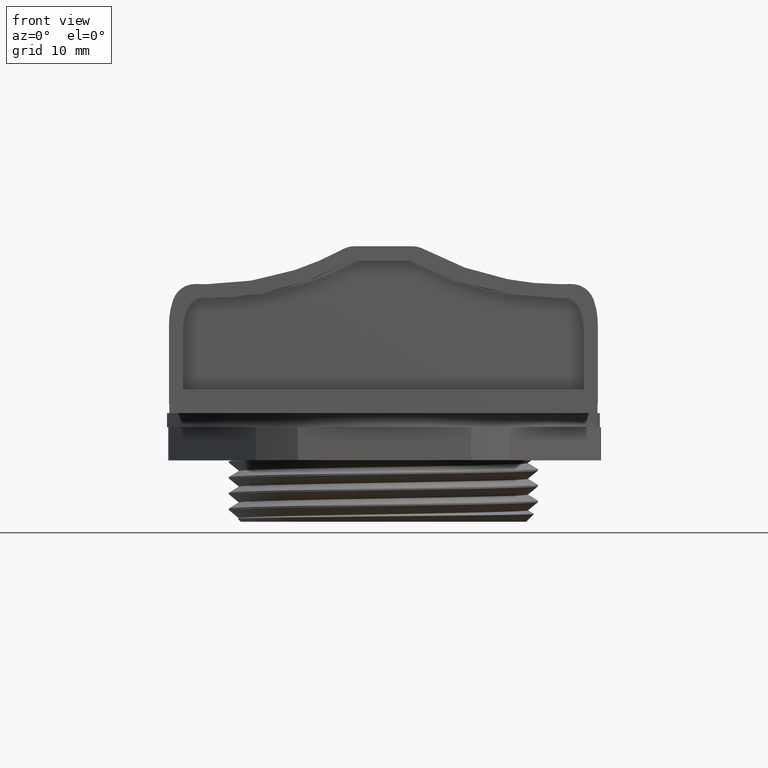
[diagram: clean part render]
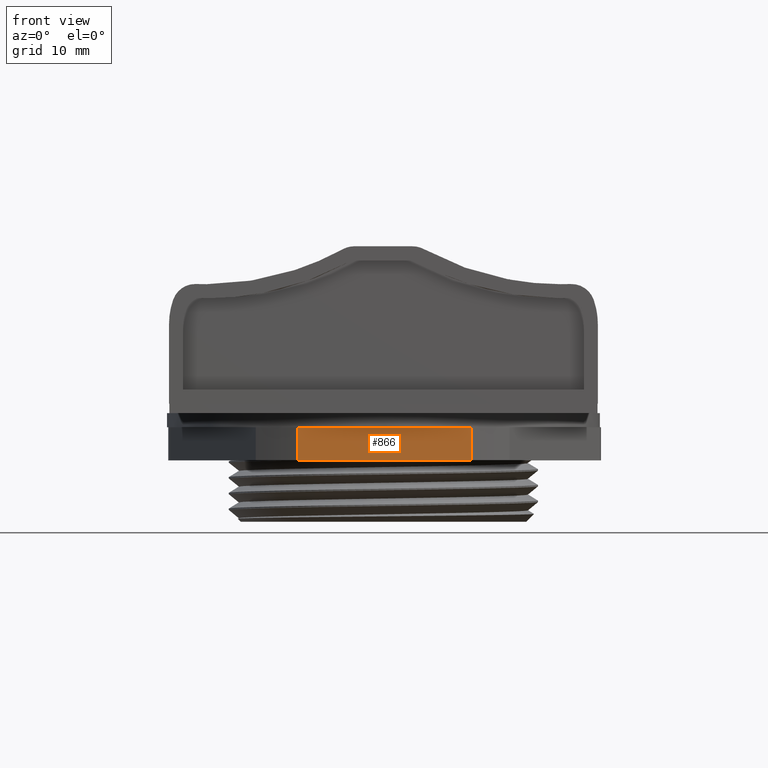
[diagram: same view with one face highlighted and labeled with its STEP entity id]
A machine part, front view. The second image highlights one B-rep face of the part: STEP entity #866.
In plain terms, the highlighted planar face has unit normal (-0, -1, 0).
Its self-contained STEP definition (entity closure, byte-faithful):
#611 = VERTEX_POINT ( 'NONE', #2903 ) ;
#618 = VERTEX_POINT ( 'NONE', #2890 ) ;
#658 = VERTEX_POINT ( 'NONE', #2970 ) ;
#661 = VERTEX_POINT ( 'NONE', #2931 ) ;
#866 = ADVANCED_FACE ( 'NONE', ( #3102 ), #3107, .T. ) ;
#1366 = EDGE_CURVE ( 'NONE', #658, #618, #7008, .T. ) ;
#1389 = EDGE_CURVE ( 'NONE', #661, #611, #7091, .T. ) ;
#1398 = EDGE_CURVE ( 'NONE', #611, #658, #7092, .T. ) ;
#1443 = EDGE_CURVE ( 'NONE', #618, #661, #7732, .T. ) ;
#2890 = CARTESIAN_POINT ( 'NONE',  ( -15.42616629562099800, -19.18970099667771500, 11.99999999999999800 ) ) ;
#2903 = CARTESIAN_POINT ( 'NONE',  ( 6.581818374526284800, -19.18970099667771500, 7.799999999999998000 ) ) ;
#2931 = CARTESIAN_POINT ( 'NONE',  ( 6.581818374526285700, -19.18970099667771500, 11.99999999999999800 ) ) ;
#2970 = CARTESIAN_POINT ( 'NONE',  ( -15.42616629562100700, -19.18970099667771500, 7.799999999999998000 ) ) ;
#3102 = FACE_OUTER_BOUND ( 'NONE', #13819, .T. ) ;
#3107 = PLANE ( 'NONE',  #5165 ) ;
#3108 = CARTESIAN_POINT ( 'NONE',  ( 10.15354489400268000, -19.18970099667771500, 89.90378681424928700 ) ) ;
#3109 = DIRECTION ( 'NONE',  ( -1.178285959793849500E-016, -1.000000000000000000, 0.0000000000000000000 ) ) ;
#3125 = DIRECTION ( 'NONE',  ( 1.000000000000000000, -1.178285959793849500E-016, 0.0000000000000000000 ) ) ;
#5165 = AXIS2_PLACEMENT_3D ( 'NONE', #3108, #3109, #3125 ) ;
#7008 = LINE ( 'NONE', #7014, #15991 ) ;
#7014 = CARTESIAN_POINT ( 'NONE',  ( -15.42616629562099800, -19.18970099667771500, -6.000000000000007100 ) ) ;
#7018 = DIRECTION ( 'NONE',  ( 0.0000000000000000000, 0.0000000000000000000, 1.000000000000000000 ) ) ;
#7083 = CARTESIAN_POINT ( 'NONE',  ( 6.581818374526284800, -19.18970099667771500, -6.000000000000007100 ) ) ;
#7091 = LINE ( 'NONE', #7083, #15983 ) ;
#7092 = LINE ( 'NONE', #7168, #16044 ) ;
#7101 = DIRECTION ( 'NONE',  ( -0.0000000000000000000, -0.0000000000000000000, -1.000000000000000000 ) ) ;
#7156 = DIRECTION ( 'NONE',  ( -1.000000000000000000, 1.178285959793849500E-016, 0.0000000000000000000 ) ) ;
#7168 = CARTESIAN_POINT ( 'NONE',  ( -4.568886970332797200, -19.18970099667771500, 7.799999999999998000 ) ) ;
#7721 = CARTESIAN_POINT ( 'NONE',  ( 10.15354489400268000, -19.18970099667771500, 11.99999999999999600 ) ) ;
#7727 = DIRECTION ( 'NONE',  ( 1.000000000000000000, -1.178285959793849500E-016, 0.0000000000000000000 ) ) ;
#7732 = LINE ( 'NONE', #7721, #16075 ) ;
#13819 = EDGE_LOOP ( 'NONE', ( #14086, #14005, #14092, #14129 ) ) ;
#14005 = ORIENTED_EDGE ( 'NONE', *, *, #1443, .F. ) ;
#14086 = ORIENTED_EDGE ( 'NONE', *, *, #1389, .F. ) ;
#14092 = ORIENTED_EDGE ( 'NONE', *, *, #1366, .F. ) ;
#14129 = ORIENTED_EDGE ( 'NONE', *, *, #1398, .F. ) ;
#15983 = VECTOR ( 'NONE', #7101, 1000.000000000000000 ) ;
#15991 = VECTOR ( 'NONE', #7018, 1000.000000000000000 ) ;
#16044 = VECTOR ( 'NONE', #7156, 1000.000000000000000 ) ;
#16075 = VECTOR ( 'NONE', #7727, 1000.000000000000000 ) ;